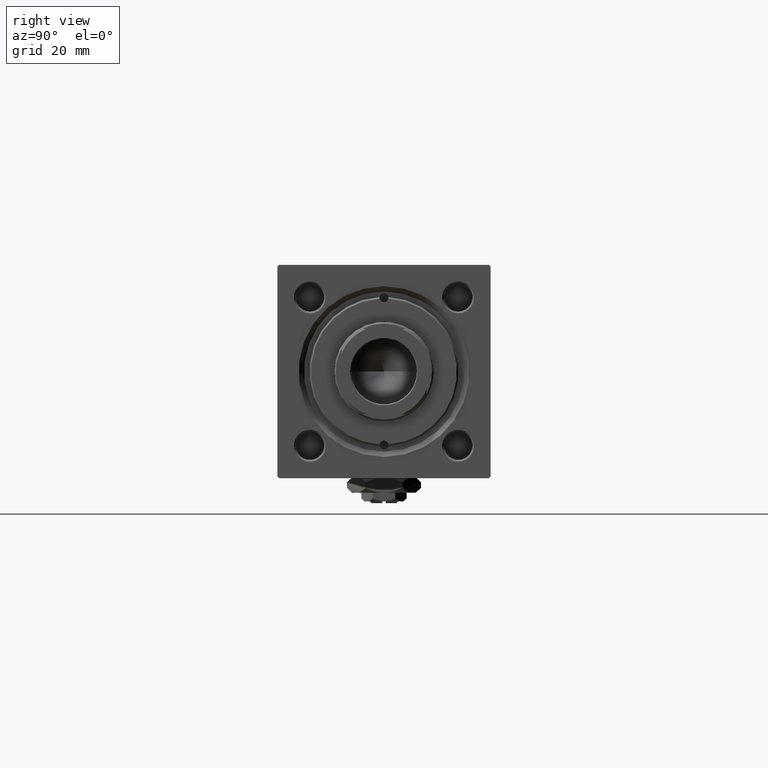
[diagram: clean part render]
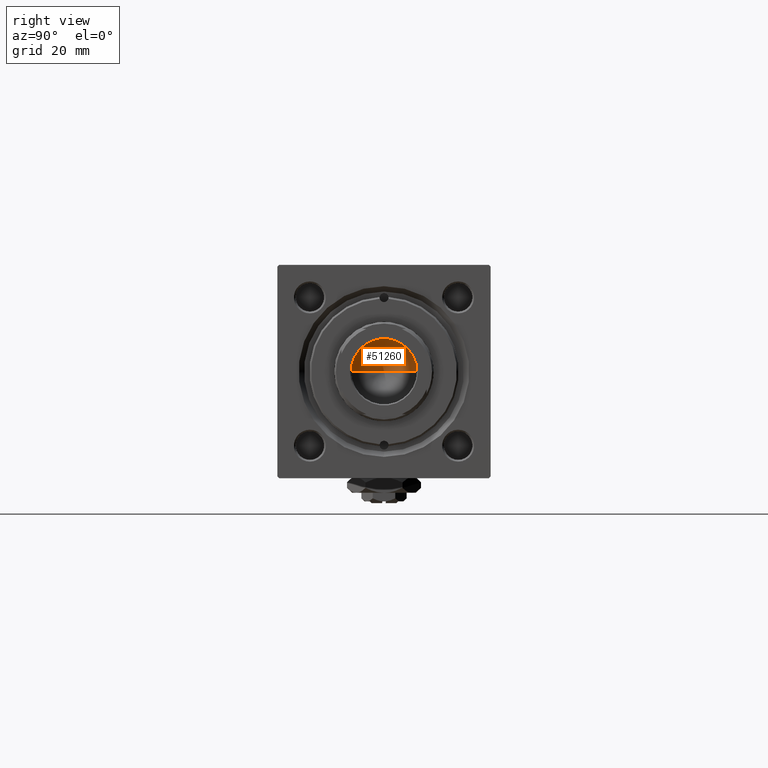
[diagram: same view with one face highlighted and labeled with its STEP entity id]
A machine part, right view. The second image highlights one B-rep face of the part: STEP entity #51260.
In plain terms, the highlighted conical surface has half-angle 59 deg.
Its self-contained STEP definition (entity closure, byte-faithful):
#721 = AXIS2_PLACEMENT_3D ( 'NONE', #4830, #44921, #8771 ) ;
#1676 = AXIS2_PLACEMENT_3D ( 'NONE', #38854, #2704, #47811 ) ;
#2704 = DIRECTION ( 'NONE',  ( -0.000000000000000000, -0.000000000000000000, 1.000000000000000000 ) ) ;
#4830 = CARTESIAN_POINT ( 'NONE',  ( 0.000000000000000000, 0.000000000000000000, 101.0000000000000000 ) ) ;
#6653 = FACE_OUTER_BOUND ( 'NONE', #45269, .T. ) ;
#8284 = ORIENTED_EDGE ( 'NONE', *, *, #48909, .T. ) ;
#8771 = DIRECTION ( 'NONE',  ( 1.000000000000000000, 0.000000000000000000, 0.000000000000000000 ) ) ;
#10761 = CARTESIAN_POINT ( 'NONE',  ( 9.249999999999992895, 0.000000000000000000, 101.0000000000000000 ) ) ;
#13054 = VECTOR ( 'NONE', #37454, 1000.000000000000000 ) ;
#22574 = VECTOR ( 'NONE', #26084, 1000.000000000000000 ) ;
#26084 = DIRECTION ( 'NONE',  ( 0.8571673007021117785, 0.000000000000000000, 0.5150380749100550437 ) ) ;
#27281 = VERTEX_POINT ( 'NONE', #40767 ) ;
#32879 = CONICAL_SURFACE ( 'NONE', #1676, 9.249999999999992895, 1.029744258676653423 ) ;
#33624 = EDGE_CURVE ( 'NONE', #27281, #37164, #48552, .T. ) ;
#33850 = CARTESIAN_POINT ( 'NONE',  ( -9.249999999999992895, 1.132798289211300712E-15, 101.0000000000000000 ) ) ;
#35339 = VERTEX_POINT ( 'NONE', #50516 ) ;
#37164 = VERTEX_POINT ( 'NONE', #33850 ) ;
#37454 = DIRECTION ( 'NONE',  ( -0.8571673007021117785, 1.049727191138617956E-16, 0.5150380749100550437 ) ) ;
#38744 = LINE ( 'NONE', #10761, #22574 ) ;
#38854 = CARTESIAN_POINT ( 'NONE',  ( 0.000000000000000000, 0.000000000000000000, 101.0000000000000000 ) ) ;
#40767 = CARTESIAN_POINT ( 'NONE',  ( -9.769621978240258809E-15, 0.000000000000000000, 95.44203927399506426 ) ) ;
#40893 = CARTESIAN_POINT ( 'NONE',  ( -9.249999999999992895, 1.132798289211300712E-15, 101.0000000000000000 ) ) ;
#44921 = DIRECTION ( 'NONE',  ( -0.000000000000000000, -0.000000000000000000, 1.000000000000000000 ) ) ;
#45269 = EDGE_LOOP ( 'NONE', ( #49756, #48803, #8284 ) ) ;
#47570 = EDGE_CURVE ( 'NONE', #27281, #35339, #38744, .T. ) ;
#47811 = DIRECTION ( 'NONE',  ( 1.000000000000000000, 0.000000000000000000, 0.000000000000000000 ) ) ;
#48552 = LINE ( 'NONE', #40893, #13054 ) ;
#48803 = ORIENTED_EDGE ( 'NONE', *, *, #33624, .T. ) ;
#48909 = EDGE_CURVE ( 'NONE', #37164, #35339, #49623, .T. ) ;
#49623 = CIRCLE ( 'NONE', #721, 9.249999999999992895 ) ;
#49756 = ORIENTED_EDGE ( 'NONE', *, *, #47570, .F. ) ;
#50516 = CARTESIAN_POINT ( 'NONE',  ( 9.249999999999992895, 0.000000000000000000, 101.0000000000000000 ) ) ;
#51260 = ADVANCED_FACE ( 'NONE', ( #6653 ), #32879, .F. ) ;